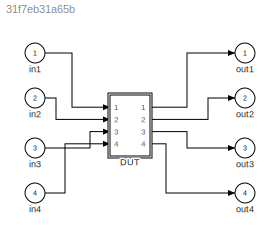
MODEL slx_31f7eb31a65b
KIND model
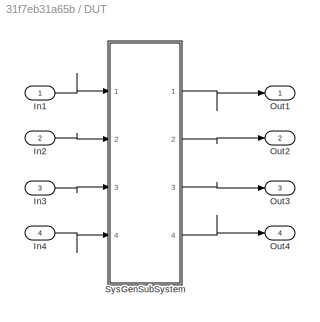
BLOCK [SubSystem] DUT
  FunctionWithSeparateData = off
  MaskHideContents = off
  MinAlgLoopOccurrences = off
  Opaque = off
  Ports = [4, 4]
  PropExecContextOutsideSubsystem = off
  RTWSystemCode = Auto
  RequestExecContextInheritance = off
BLOCK [Inport] DUT/In1
  IconDisplay = Port number
BLOCK [Inport] DUT/In2
  IconDisplay = Port number
  Port = 2
BLOCK [Inport] DUT/In3
  IconDisplay = Port number
  Port = 3
BLOCK [Inport] DUT/In4
  IconDisplay = Port number
  Port = 4
BLOCK [Outport] DUT/Out1
  IconDisplay = Port number
BLOCK [Outport] DUT/Out2
  IconDisplay = Port number
  Port = 2
BLOCK [Outport] DUT/Out3
  IconDisplay = Port number
  Port = 3
BLOCK [Outport] DUT/Out4
  IconDisplay = Port number
  Port = 4
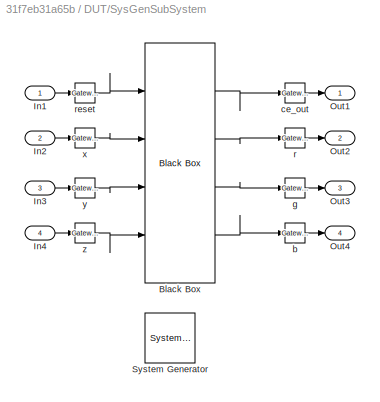
BLOCK [SubSystem] DUT/SysGenSubSystem
  FunctionWithSeparateData = off
  MaskHideContents = off
  MinAlgLoopOccurrences = off
  Opaque = off
  Ports = [4, 4]
  PropExecContextOutsideSubsystem = off
  RTWSystemCode = Auto
  RequestExecContextInheritance = off
BLOCK [Reference] DUT/SysGenSubSystem/ System Generator  REF=xbsIndex_r4/ System Generator
  AttributesFormatString = System\nGenerator
  Impl_file = ISE Defaults
  Ports = []
  SourceBlock = xbsIndex_r4/ System Generator
  SourceType = Xilinx System Generator Block
  Synth_file = XST Defaults
  Tag = genX
  UserDataPersistent = on
  block_type = sysgen
  clock_wrapper = Clock Enables
  core_generation = According to Block Masks
  dbl_ovrd = According to Block Masks
  dcm_input_clock_period = 10
  deprecated_control = off
  directory = ./netlist
  eval_field = 0
  has_advanced_control = 0
  incr_netlist = off
  infoedit = System Generator
  package = fbg676
  part = xc7k325t
  proj_type = Project Navigator
  run_coregen = off
  sg_icon_stat = 50,50,-1,-1,token,white,0,07734,right,,[ ],[ ]
  sg_mask_display = fprintf('','COMMENT: begin icon graphics');\npatch([0 50 50 0 0 ],[0 0 50 50 0 ],[1 1 1 ]);\npatch([1.6375 16.81 27.31 37.81 48.31 27.31 12.1375 1.6375 ],[36.655 36.655 47.155 36.655 47.155 47.155 47.155 36.655 ],[0.933333 0.203922 0.141176 ]);\npatch([12.1375 27.31 16.81 1.6375 12.1375 ],[26.155 26.155 36.655 36.655 26.155 ],[0.698039 0.0313725 0.219608 ]);\npatch([1.6375 16.81 27.31 12.1375 1.6375 ]...<+327ch>
  sggui_pos = 326,237,464,470
  simulink_period = 1
  speed = -3
  synthesis_tool = XST
  sysclk_period = 10
  testbench = off
  trim_vbits = Everywhere in SubSystem
  xilinxfamily = kintex7
BLOCK [Reference] DUT/SysGenSubSystem/Black Box  REF=xbsIndex_r4/Black Box
  Ports = [4, 4]
  SourceBlock = xbsIndex_r4/Black Box
  SourceType = Xilinx Black Box Block
  block_type = blackbox2
  has_advanced_control = 0
  infoedit = Incorporates black box HDL and simulation model into a System Generator design.<br><br>You must supply a Black Box with certain information about the HDL component you would like to bring into System Generator. This information is provided through a Matlab function.<br><br>When "Simulation mode" is set to "Inactive", you will typically want to provide a separate simulation model by using a Simulat...<+126ch>
  init_code = xyztorgb_fixpt_xsgbbxcfg
  sg_icon_stat = 70,240,4,4,white,blue,0,538a15d7,right,,[ ],[ ]
  sg_mask_display = fprintf('','COMMENT: begin icon graphics');\npatch([0 70 70 0 0 ],[0 0 240 240 0 ],[0.77 0.82 0.91 ]);\nplot([0 70 70 0 0 ],[0 0 240 240 0 ]);\npatch([12.75 27.2 37.2 47.2 57.2 37.2 22.75 12.75 ],[131.1 131.1 141.1 131.1 141.1 141.1 141.1 131.1 ],[1 1 1 ]);\npatch([22.75 37.2 27.2 12.75 22.75 ],[121.1 121.1 131.1 131.1 121.1 ],[0.931 0.946 0.973 ]);\npatch([12.75 27.2 37.2 22.75 12.75 ],[111.1 111.1 12...<+612ch>
  sggui_pos = -1,-1,-1,-1
  sim_method = Inactive
  verbose = off
  xl_area = [0,0,0,0,0,0,0]
  xl_use_area = off
BLOCK [Inport] DUT/SysGenSubSystem/In1
  IconDisplay = Port number
BLOCK [Inport] DUT/SysGenSubSystem/In2
  IconDisplay = Port number
  Port = 2
BLOCK [Inport] DUT/SysGenSubSystem/In3
  IconDisplay = Port number
  Port = 3
BLOCK [Inport] DUT/SysGenSubSystem/In4
  IconDisplay = Port number
  Port = 4
BLOCK [Outport] DUT/SysGenSubSystem/Out1
  IconDisplay = Port number
BLOCK [Outport] DUT/SysGenSubSystem/Out2
  IconDisplay = Port number
  Port = 2
BLOCK [Outport] DUT/SysGenSubSystem/Out3
  IconDisplay = Port number
  Port = 3
BLOCK [Outport] DUT/SysGenSubSystem/Out4
  IconDisplay = Port number
  Port = 4
BLOCK [Reference] DUT/SysGenSubSystem/b  REF=xbsIndex_r4/Gateway Out
  DACChannel = '1'
  LOCs = {}
  Ports = [1, 1]
  SourceBlock = xbsIndex_r4/Gateway Out
  SourceType = Xilinx Gateway Out Block
  UseAsDAC = off
  block_type = gatewayout
  has_advanced_control = 0
  hdl_port = on
  infoedit = Gateway out block.  Converts Xilinx fixed-point or floating-point type inputs into ouputs of type Simulink integer, single, double, or fixed-point.<br><br>Hardware notes:  In hardware these blocks become top level output ports or are discarded, depending on how they are configured.  <repeated x4 — deduplicated; at blocks: b, ce_out, g, r>
  inherit_from_input = on
  locs_specified = off
  sg_icon_stat = 20,20,1,1,white,yellow,1,cc31b7ac,right,,[ ],[ ]
  sg_mask_display = fprintf('','COMMENT: begin icon graphics');\npatch([0 20 20 0 0 ],[0 0 20 20 0 ],[0.95 0.93 0.65 ]);\nplot([0 20 20 0 0 ],[0 0 20 20 0 ]);\npatch([5.55 8.44 10.44 12.44 14.44 10.44 7.55 5.55 ],[12.22 12.22 14.22 12.22 14.22 14.22 14.22 12.22 ],[1 1 1 ]);\npatch([7.55 10.44 8.44 5.55 7.55 ],[10.22 10.22 12.22 12.22 10.22 ],[0.985 0.979 0.895 ]);\npatch([5.55 8.44 10.44 7.55 5.55 ],[8.22 8.22 10.22 10.22...<+368ch>  <repeated x4 — deduplicated; at blocks: b, ce_out, g, r>
  sggui_pos = -1,-1,-1,-1
  timing_constraint = None
  xl_area = [0,0,0,0,0,0,0]
  xl_use_area = off
BLOCK [Reference] DUT/SysGenSubSystem/ce_out  REF=xbsIndex_r4/Gateway Out
  DACChannel = '1'
  LOCs = {}
  Ports = [1, 1]
  SourceBlock = xbsIndex_r4/Gateway Out
  SourceType = Xilinx Gateway Out Block
  UseAsDAC = off
  block_type = gatewayout
  has_advanced_control = 0
  hdl_port = on
  inherit_from_input = on
  locs_specified = off
  sg_icon_stat = 20,20,1,1,white,yellow,1,cc31b7ac,right,,[ ],[ ]
  sggui_pos = -1,-1,-1,-1
  timing_constraint = None
  xl_area = [0,0,0,0,0,0,0]
  xl_use_area = off
BLOCK [Reference] DUT/SysGenSubSystem/g  REF=xbsIndex_r4/Gateway Out
  DACChannel = '1'
  LOCs = {}
  Ports = [1, 1]
  SourceBlock = xbsIndex_r4/Gateway Out
  SourceType = Xilinx Gateway Out Block
  UseAsDAC = off
  block_type = gatewayout
  has_advanced_control = 0
  hdl_port = on
  inherit_from_input = on
  locs_specified = off
  sg_icon_stat = 20,20,1,1,white,yellow,1,cc31b7ac,right,,[ ],[ ]
  sggui_pos = -1,-1,-1,-1
  timing_constraint = None
  xl_area = [0,0,0,0,0,0,0]
  xl_use_area = off
BLOCK [Reference] DUT/SysGenSubSystem/r  REF=xbsIndex_r4/Gateway Out
  DACChannel = '1'
  LOCs = {}
  Ports = [1, 1]
  SourceBlock = xbsIndex_r4/Gateway Out
  SourceType = Xilinx Gateway Out Block
  UseAsDAC = off
  block_type = gatewayout
  has_advanced_control = 0
  hdl_port = on
  inherit_from_input = on
  locs_specified = off
  sg_icon_stat = 20,20,1,1,white,yellow,1,cc31b7ac,right,,[ ],[ ]
  sggui_pos = -1,-1,-1,-1
  timing_constraint = None
  xl_area = [0,0,0,0,0,0,0]
  xl_use_area = off
BLOCK [Reference] DUT/SysGenSubSystem/reset  REF=xbsIndex_r4/Gateway In
  ADCChannel = '1'
  LOCs = {}
  Ports = [1, 1]
  SourceBlock = xbsIndex_r4/Gateway In
  SourceType = Xilinx Gateway In Block
  UseAsADC = off
  arith_type = Boolean
  bin_pt = 14
  block_type = gatewayin
  dbl_ovrd = off
  exp_width = 8
  frac_width = 24
  gui_display_data_type = Fixed-point
  has_advanced_control = 0
  hdl_port = on
  infoedit = Gateway in block.  Converts inputs of type Simulink integer, single, double and fixed-point to  Xilinx fixed-point or floating-point data type.<br><br>Hardware notes:  In hardware these blocks become top level input ports.  <repeated x4 — deduplicated; at blocks: reset, x, y, z>
  inherit_from_input = off
  locs_specified = off
  n_bits = 16
  overflow = Saturate
  period = 1
  preci_type = Single
  quantization = Round  (unbiased: +/- Inf)
  sg_icon_stat = 20,20,1,1,white,yellow,1,00d3666e,right,,[ ],[ ]
  sg_mask_display = fprintf('','COMMENT: begin icon graphics');\npatch([0 20 20 0 0 ],[0 0 20 20 0 ],[0.95 0.93 0.65 ]);\nplot([0 20 20 0 0 ],[0 0 20 20 0 ]);\npatch([5.55 8.44 10.44 12.44 14.44 10.44 7.55 5.55 ],[12.22 12.22 14.22 12.22 14.22 14.22 14.22 12.22 ],[1 1 1 ]);\npatch([7.55 10.44 8.44 5.55 7.55 ],[10.22 10.22 12.22 12.22 10.22 ],[0.985 0.979 0.895 ]);\npatch([5.55 8.44 10.44 7.55 5.55 ],[8.22 8.22 10.22 10.22...<+367ch>  <repeated x4 — deduplicated; at blocks: reset, x, y, z>
  sggui_pos = -1,-1,-1,-1
  timing_constraint = None
  xl_area = [0,0,0,0,0,0,0]
  xl_use_area = off
BLOCK [Reference] DUT/SysGenSubSystem/x  REF=xbsIndex_r4/Gateway In
  ADCChannel = '1'
  LOCs = {}
  Ports = [1, 1]
  SourceBlock = xbsIndex_r4/Gateway In
  SourceType = Xilinx Gateway In Block
  UseAsADC = off
  arith_type = Unsigned
  bin_pt = 0
  block_type = gatewayin
  dbl_ovrd = off
  exp_width = 8
  frac_width = 24
  gui_display_data_type = Fixed-point
  has_advanced_control = 0
  hdl_port = on
  inherit_from_input = off
  locs_specified = off
  n_bits = 8
  overflow = Saturate
  period = 1
  preci_type = Single
  quantization = Round  (unbiased: +/- Inf)
  sg_icon_stat = 20,20,1,1,white,yellow,1,00d3666e,right,,[ ],[ ]
  sggui_pos = -1,-1,-1,-1
  timing_constraint = None
  xl_area = [0,0,0,0,0,0,0]
  xl_use_area = off
BLOCK [Reference] DUT/SysGenSubSystem/y  REF=xbsIndex_r4/Gateway In
  ADCChannel = '1'
  LOCs = {}
  Ports = [1, 1]
  SourceBlock = xbsIndex_r4/Gateway In
  SourceType = Xilinx Gateway In Block
  UseAsADC = off
  arith_type = Unsigned
  bin_pt = 0
  block_type = gatewayin
  dbl_ovrd = off
  exp_width = 8
  frac_width = 24
  gui_display_data_type = Fixed-point
  has_advanced_control = 0
  hdl_port = on
  inherit_from_input = off
  locs_specified = off
  n_bits = 8
  overflow = Saturate
  period = 1
  preci_type = Single
  quantization = Round  (unbiased: +/- Inf)
  sg_icon_stat = 20,20,1,1,white,yellow,1,00d3666e,right,,[ ],[ ]
  sggui_pos = -1,-1,-1,-1
  timing_constraint = None
  xl_area = [0,0,0,0,0,0,0]
  xl_use_area = off
BLOCK [Reference] DUT/SysGenSubSystem/z  REF=xbsIndex_r4/Gateway In
  ADCChannel = '1'
  LOCs = {}
  Ports = [1, 1]
  SourceBlock = xbsIndex_r4/Gateway In
  SourceType = Xilinx Gateway In Block
  UseAsADC = off
  arith_type = Unsigned
  bin_pt = 0
  block_type = gatewayin
  dbl_ovrd = off
  exp_width = 8
  frac_width = 24
  gui_display_data_type = Fixed-point
  has_advanced_control = 0
  hdl_port = on
  inherit_from_input = off
  locs_specified = off
  n_bits = 8
  overflow = Saturate
  period = 1
  preci_type = Single
  quantization = Round  (unbiased: +/- Inf)
  sg_icon_stat = 20,20,1,1,white,yellow,1,00d3666e,right,,[ ],[ ]
  sggui_pos = -1,-1,-1,-1
  timing_constraint = None
  xl_area = [0,0,0,0,0,0,0]
  xl_use_area = off
BLOCK [Inport] in1
  IconDisplay = Port number
  OutDataTypeStr = numerictype('boolean')
BLOCK [Inport] in2
  IconDisplay = Port number
  OutDataTypeStr = numerictype(false,8,0)
  Port = 2
BLOCK [Inport] in3
  IconDisplay = Port number
  OutDataTypeStr = numerictype(false,8,0)
  Port = 3
BLOCK [Inport] in4
  IconDisplay = Port number
  OutDataTypeStr = numerictype(false,8,0)
  Port = 4
BLOCK [Outport] out1
  IconDisplay = Port number
BLOCK [Outport] out2
  IconDisplay = Port number
  Port = 2
BLOCK [Outport] out3
  IconDisplay = Port number
  Port = 3
BLOCK [Outport] out4
  IconDisplay = Port number
  Port = 4
LINE DUT/In1:1 -> DUT/SysGenSubSystem:1
LINE DUT/In2:1 -> DUT/SysGenSubSystem:2
LINE DUT/In3:1 -> DUT/SysGenSubSystem:3
LINE DUT/In4:1 -> DUT/SysGenSubSystem:4
LINE DUT/SysGenSubSystem/Black Box:1 -> DUT/SysGenSubSystem/ce_out:1
LINE DUT/SysGenSubSystem/Black Box:2 -> DUT/SysGenSubSystem/r:1
LINE DUT/SysGenSubSystem/Black Box:3 -> DUT/SysGenSubSystem/g:1
LINE DUT/SysGenSubSystem/Black Box:4 -> DUT/SysGenSubSystem/b:1
LINE DUT/SysGenSubSystem/In1:1 -> DUT/SysGenSubSystem/reset:1
LINE DUT/SysGenSubSystem/In2:1 -> DUT/SysGenSubSystem/x:1
LINE DUT/SysGenSubSystem/In3:1 -> DUT/SysGenSubSystem/y:1
LINE DUT/SysGenSubSystem/In4:1 -> DUT/SysGenSubSystem/z:1
LINE DUT/SysGenSubSystem/b:1 -> DUT/SysGenSubSystem/Out4:1
LINE DUT/SysGenSubSystem/ce_out:1 -> DUT/SysGenSubSystem/Out1:1
LINE DUT/SysGenSubSystem/g:1 -> DUT/SysGenSubSystem/Out3:1
LINE DUT/SysGenSubSystem/r:1 -> DUT/SysGenSubSystem/Out2:1
LINE DUT/SysGenSubSystem/reset:1 -> DUT/SysGenSubSystem/Black Box:1
LINE DUT/SysGenSubSystem/x:1 -> DUT/SysGenSubSystem/Black Box:2
LINE DUT/SysGenSubSystem/y:1 -> DUT/SysGenSubSystem/Black Box:3
LINE DUT/SysGenSubSystem/z:1 -> DUT/SysGenSubSystem/Black Box:4
LINE DUT/SysGenSubSystem:1 -> DUT/Out1:1
LINE DUT/SysGenSubSystem:2 -> DUT/Out2:1
LINE DUT/SysGenSubSystem:3 -> DUT/Out3:1
LINE DUT/SysGenSubSystem:4 -> DUT/Out4:1
LINE DUT:1 -> out1:1
LINE DUT:2 -> out2:1
LINE DUT:3 -> out3:1
LINE DUT:4 -> out4:1
LINE in1:1 -> DUT:1
LINE in2:1 -> DUT:2
LINE in3:1 -> DUT:3
LINE in4:1 -> DUT:4
